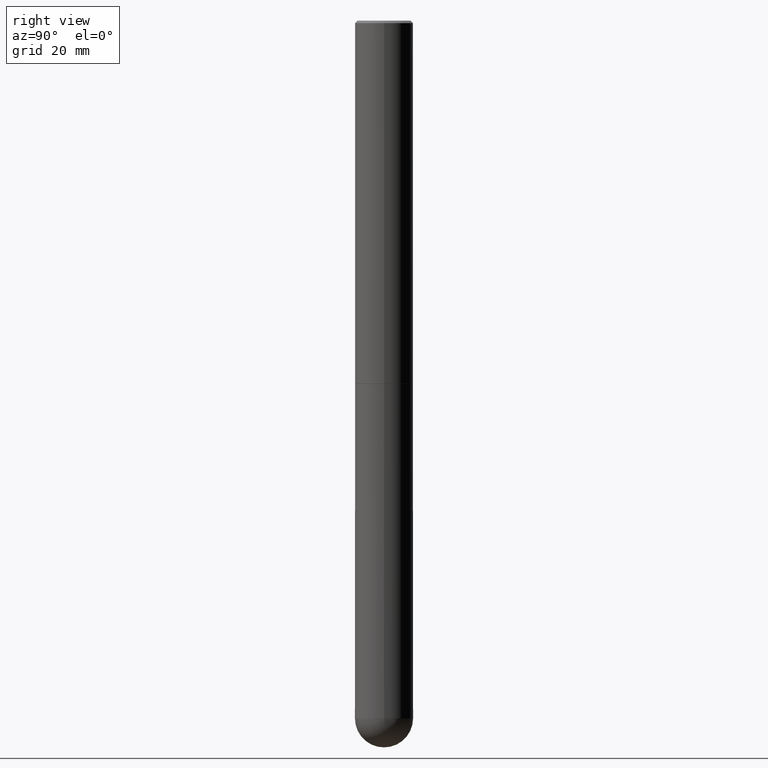
[diagram: clean part render]
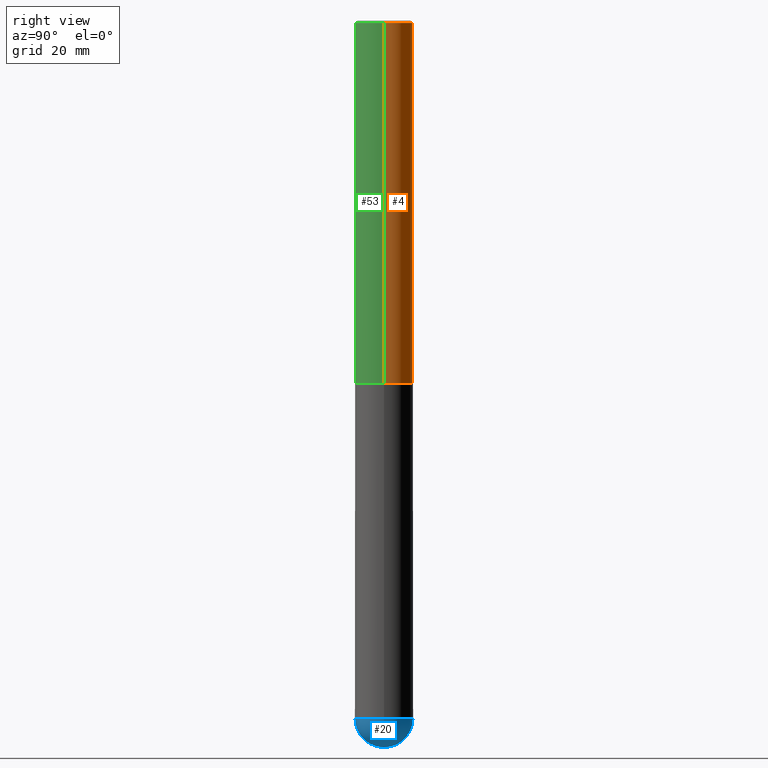
[diagram: same view with three faces highlighted in distinct colors, each labeled with its STEP entity id]
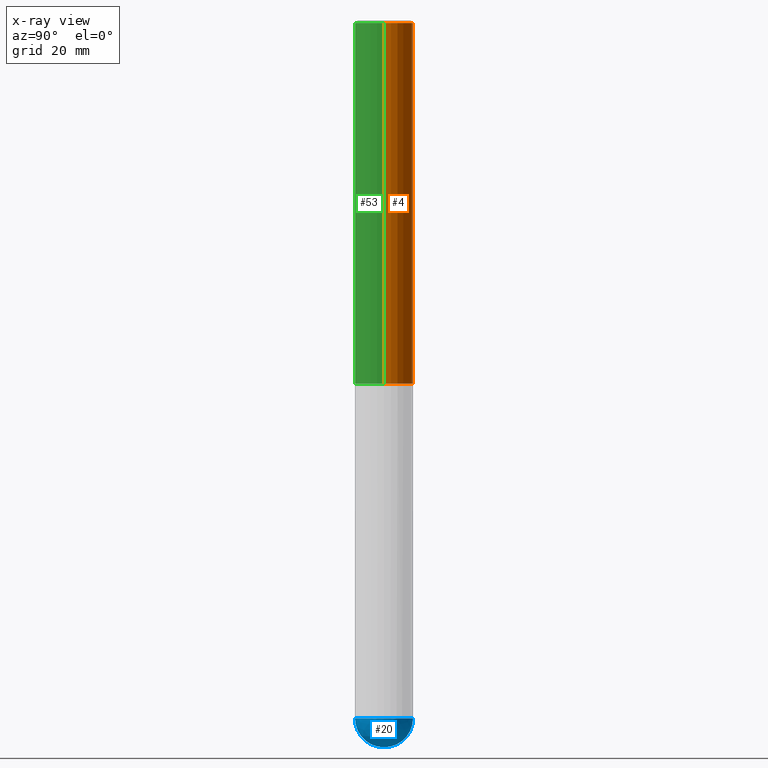
[diagram: x-ray of the same camera — body ghosted, the three highlighted faces saturated]
A machine part, right view with three faces highlighted in distinct colors.
The next image is the same camera in x-ray (body ghosted, the three faces saturated) — at least one of them is partly hidden behind the body in this view.
Their STEP definitions:

[orange] entity #4 — the highlighted cylindrical surface (edge-blend (fillet) strip) has radius 5.9995 mm, axis along (-0, 0, 1).
#4 = ADVANCED_FACE ( 'NONE', ( #305 ), #247, .T. ) ;
#8 = CARTESIAN_POINT ( 'NONE',  ( 4.890937612370285420E-31, -6.982962677686308865E-17, -0.02000000000000005246 ) ) ;
#22 = AXIS2_PLACEMENT_3D ( 'NONE', #8, #231, #325 ) ;
#35 = AXIS2_PLACEMENT_3D ( 'NONE', #245, #341, #395 ) ;
#49 = ORIENTED_EDGE ( 'NONE', *, *, #330, .F. ) ;
#64 = VERTEX_POINT ( 'NONE', #373 ) ;
#69 = LINE ( 'NONE', #194, #408 ) ;
#70 = CARTESIAN_POINT ( 'NONE',  ( 7.218290275216666916E-29, -1.030580546786331359E-14, -2.951700000000000212 ) ) ;
#81 = VECTOR ( 'NONE', #347, 39.37007874015748143 ) ;
#94 = LINE ( 'NONE', #104, #81 ) ;
#104 = CARTESIAN_POINT ( 'NONE',  ( 0.2362000000000001598, -1.649375784469497314E-15, 1.151752954443000929E-29 ) ) ;
#133 = EDGE_LOOP ( 'NONE', ( #277, #405, #49, #185 ) ) ;
#181 = EDGE_CURVE ( 'NONE', #64, #261, #94, .T. ) ;
#185 = ORIENTED_EDGE ( 'NONE', *, *, #181, .F. ) ;
#194 = CARTESIAN_POINT ( 'NONE',  ( -0.2362000000000001598, 1.678301941865357775E-15, -1.161852468318209598E-29 ) ) ;
#202 = EDGE_CURVE ( 'NONE', #367, #208, #69, .T. ) ;
#208 = VERTEX_POINT ( 'NONE', #287 ) ;
#231 = DIRECTION ( 'NONE',  ( -2.445468806185136597E-29, 3.491481338843145583E-15, 1.000000000000000000 ) ) ;
#241 = CIRCLE ( 'NONE', #22, 0.2361999999999999933 ) ;
#245 = CARTESIAN_POINT ( 'NONE',  ( 0.000000000000000000, 0.000000000000000000, 0.000000000000000000 ) ) ;
#247 = CYLINDRICAL_SURFACE ( 'NONE', #35, 0.2362000000000001598 ) ;
#250 = EDGE_CURVE ( 'NONE', #64, #367, #292, .T. ) ;
#261 = VERTEX_POINT ( 'NONE', #312 ) ;
#277 = ORIENTED_EDGE ( 'NONE', *, *, #250, .T. ) ;
#279 = DIRECTION ( 'NONE',  ( 1.000000000000000000, -6.982962677686263555E-15, 0.000000000000000000 ) ) ;
#287 = CARTESIAN_POINT ( 'NONE',  ( -0.2361999999999999933, 1.579546157692633030E-15, -0.02000000000000005246 ) ) ;
#292 = CIRCLE ( 'NONE', #375, 0.2362000000000003264 ) ;
#305 = FACE_OUTER_BOUND ( 'NONE', #133, .T. ) ;
#312 = CARTESIAN_POINT ( 'NONE',  ( 0.2361999999999999933, -1.690279253850498771E-15, -0.02000000000000005246 ) ) ;
#318 = DIRECTION ( 'NONE',  ( -2.445468806185136597E-29, 3.491481338843145583E-15, 1.000000000000000000 ) ) ;
#325 = DIRECTION ( 'NONE',  ( 1.000000000000000000, -6.982962677686266711E-15, 0.000000000000000000 ) ) ;
#330 = EDGE_CURVE ( 'NONE', #261, #208, #241, .T. ) ;
#341 = DIRECTION ( 'NONE',  ( -2.445468806185136597E-29, 3.491481338843145583E-15, 1.000000000000000000 ) ) ;
#347 = DIRECTION ( 'NONE',  ( -2.445468806185136877E-29, 3.491481338843145188E-15, 1.000000000000000000 ) ) ;
#356 = CARTESIAN_POINT ( 'NONE',  ( -0.2362000000000003264, -3.509515605454725737E-15, -2.951700000000000212 ) ) ;
#367 = VERTEX_POINT ( 'NONE', #356 ) ;
#373 = CARTESIAN_POINT ( 'NONE',  ( 0.2362000000000003264, -1.195518125233281169E-14, -2.951700000000000212 ) ) ;
#375 = AXIS2_PLACEMENT_3D ( 'NONE', #70, #318, #279 ) ;
#395 = DIRECTION ( 'NONE',  ( 1.000000000000000000, -6.982962677686266711E-15, 4.876176775795936353E-29 ) ) ;
#405 = ORIENTED_EDGE ( 'NONE', *, *, #202, .T. ) ;
#408 = VECTOR ( 'NONE', #412, 39.37007874015748143 ) ;
#412 = DIRECTION ( 'NONE',  ( -2.445468806185136877E-29, 3.491481338843145188E-15, 1.000000000000000000 ) ) ;

[blue] entity #20 — the highlighted spherical surface has radius 5.9995 mm.
#10 = AXIS2_PLACEMENT_3D ( 'NONE', #240, #365, #272 ) ;
#20 = ADVANCED_FACE ( 'NONE', ( #182 ), #150, .T. ) ;
#23 = CARTESIAN_POINT ( 'NONE',  ( 1.353297652499150981E-28, -2.026843752244349558E-14, -5.669299999999999784 ) ) ;
#28 = CARTESIAN_POINT ( 'NONE',  ( 1.386409630290539494E-28, -1.979425515430344370E-14, -5.669299999999999784 ) ) ;
#36 = CIRCLE ( 'NONE', #278, 0.2361999999999999933 ) ;
#41 = CIRCLE ( 'NONE', #66, 0.2362000000000002709 ) ;
#55 = EDGE_LOOP ( 'NONE', ( #289, #409, #117, #339 ) ) ;
#59 = DIRECTION ( 'NONE',  ( -1.000000000000000000, 6.982962677686265922E-15, -4.883557194083112901E-29 ) ) ;
#66 = AXIS2_PLACEMENT_3D ( 'NONE', #132, #377, #257 ) ;
#71 = CARTESIAN_POINT ( 'NONE',  ( 1.412069577088764835E-28, -2.107866233598031943E-14, -5.905499999999999972 ) ) ;
#80 = EDGE_CURVE ( 'NONE', #286, #111, #374, .T. ) ;
#87 = VERTEX_POINT ( 'NONE', #215 ) ;
#98 = DIRECTION ( 'NONE',  ( 1.000000000000000000, -6.982962677686273021E-15, 0.000000000000000000 ) ) ;
#107 = EDGE_CURVE ( 'NONE', #286, #303, #41, .T. ) ;
#111 = VERTEX_POINT ( 'NONE', #378 ) ;
#117 = ORIENTED_EDGE ( 'NONE', *, *, #288, .F. ) ;
#125 = AXIS2_PLACEMENT_3D ( 'NONE', #23, #59, #180 ) ;
#129 = DIRECTION ( 'NONE',  ( 1.000000000000000000, -6.982962677686273021E-15, 0.000000000000000000 ) ) ;
#132 = CARTESIAN_POINT ( 'NONE',  ( 1.353297652499150981E-28, -2.026843752244349558E-14, -5.669299999999999784 ) ) ;
#135 = EDGE_CURVE ( 'NONE', #303, #87, #402, .T. ) ;
#150 = SPHERICAL_SURFACE ( 'NONE', #125, 0.2362000000000002709 ) ;
#180 = DIRECTION ( 'NONE',  ( 6.982962677686265922E-15, 1.000000000000000000, -4.626330217890364603E-15 ) ) ;
#182 = FACE_OUTER_BOUND ( 'NONE', #55, .T. ) ;
#215 = CARTESIAN_POINT ( 'NONE',  ( 0.2361999999999999933, -1.670115183622230141E-14, -5.669299999999999784 ) ) ;
#224 = CARTESIAN_POINT ( 'NONE',  ( 1.386409630290539494E-28, -1.979425515430344370E-14, -5.669299999999999784 ) ) ;
#240 = CARTESIAN_POINT ( 'NONE',  ( 1.353297652499150981E-28, -2.026843752244349558E-14, -5.669299999999999784 ) ) ;
#253 = CARTESIAN_POINT ( 'NONE',  ( -1.678301941865220316E-15, -0.2362000000000201716, -5.669299999999998896 ) ) ;
#257 = DIRECTION ( 'NONE',  ( -7.105427357601001070E-15, -1.000000000000000000, 0.000000000000000000 ) ) ;
#272 = DIRECTION ( 'NONE',  ( 6.982962677686265922E-15, 1.000000000000000000, 0.000000000000000000 ) ) ;
#278 = AXIS2_PLACEMENT_3D ( 'NONE', #28, #404, #129 ) ;
#286 = VERTEX_POINT ( 'NONE', #71 ) ;
#288 = EDGE_CURVE ( 'NONE', #87, #111, #36, .T. ) ;
#289 = ORIENTED_EDGE ( 'NONE', *, *, #107, .F. ) ;
#298 = AXIS2_PLACEMENT_3D ( 'NONE', #224, #406, #98 ) ;
#303 = VERTEX_POINT ( 'NONE', #253 ) ;
#339 = ORIENTED_EDGE ( 'NONE', *, *, #135, .F. ) ;
#365 = DIRECTION ( 'NONE',  ( 1.000000000000000000, -6.982962677686265922E-15, 4.883557194083112340E-29 ) ) ;
#374 = CIRCLE ( 'NONE', #10, 0.2362000000000002709 ) ;
#377 = DIRECTION ( 'NONE',  ( -1.000000000000000000, 7.105427357601001070E-15, -4.926315508542082329E-29 ) ) ;
#378 = CARTESIAN_POINT ( 'NONE',  ( 1.649375784469633984E-15, 0.2361999999999800925, -5.669300000000000672 ) ) ;
#402 = CIRCLE ( 'NONE', #298, 0.2361999999999999933 ) ;
#404 = DIRECTION ( 'NONE',  ( -2.445468806185136597E-29, 3.491481338843145583E-15, 1.000000000000000000 ) ) ;
#406 = DIRECTION ( 'NONE',  ( -2.445468806185136597E-29, 3.491481338843145583E-15, 1.000000000000000000 ) ) ;
#409 = ORIENTED_EDGE ( 'NONE', *, *, #80, .T. ) ;

[green] entity #53 — the highlighted cylindrical surface (edge-blend (fillet) strip) has radius 5.9995 mm, axis along (-0, 0, 1).
#6 = DIRECTION ( 'NONE',  ( -2.445468806185136597E-29, 3.491481338843145583E-15, 1.000000000000000000 ) ) ;
#24 = DIRECTION ( 'NONE',  ( -2.445468806185136597E-29, 3.491481338843145583E-15, 1.000000000000000000 ) ) ;
#26 = FACE_OUTER_BOUND ( 'NONE', #115, .T. ) ;
#53 = ADVANCED_FACE ( 'NONE', ( #26 ), #206, .T. ) ;
#64 = VERTEX_POINT ( 'NONE', #373 ) ;
#69 = LINE ( 'NONE', #194, #408 ) ;
#72 = AXIS2_PLACEMENT_3D ( 'NONE', #371, #24, #124 ) ;
#81 = VECTOR ( 'NONE', #347, 39.37007874015748143 ) ;
#94 = LINE ( 'NONE', #104, #81 ) ;
#104 = CARTESIAN_POINT ( 'NONE',  ( 0.2362000000000001598, -1.649375784469497314E-15, 1.151752954443000929E-29 ) ) ;
#115 = EDGE_LOOP ( 'NONE', ( #334, #116, #306, #354 ) ) ;
#116 = ORIENTED_EDGE ( 'NONE', *, *, #327, .T. ) ;
#124 = DIRECTION ( 'NONE',  ( 1.000000000000000000, -6.982962677686266711E-15, 4.876176775795936353E-29 ) ) ;
#126 = AXIS2_PLACEMENT_3D ( 'NONE', #283, #158, #342 ) ;
#158 = DIRECTION ( 'NONE',  ( -2.445468806185136597E-29, 3.491481338843145583E-15, 1.000000000000000000 ) ) ;
#181 = EDGE_CURVE ( 'NONE', #64, #261, #94, .T. ) ;
#194 = CARTESIAN_POINT ( 'NONE',  ( -0.2362000000000001598, 1.678301941865357775E-15, -1.161852468318209598E-29 ) ) ;
#202 = EDGE_CURVE ( 'NONE', #367, #208, #69, .T. ) ;
#206 = CYLINDRICAL_SURFACE ( 'NONE', #72, 0.2362000000000001598 ) ;
#208 = VERTEX_POINT ( 'NONE', #287 ) ;
#221 = AXIS2_PLACEMENT_3D ( 'NONE', #389, #6, #264 ) ;
#242 = EDGE_CURVE ( 'NONE', #208, #261, #390, .T. ) ;
#261 = VERTEX_POINT ( 'NONE', #312 ) ;
#264 = DIRECTION ( 'NONE',  ( 1.000000000000000000, -6.982962677686263555E-15, 0.000000000000000000 ) ) ;
#283 = CARTESIAN_POINT ( 'NONE',  ( 4.890937612370285420E-31, -6.982962677686308865E-17, -0.02000000000000005246 ) ) ;
#284 = CIRCLE ( 'NONE', #221, 0.2362000000000003264 ) ;
#287 = CARTESIAN_POINT ( 'NONE',  ( -0.2361999999999999933, 1.579546157692633030E-15, -0.02000000000000005246 ) ) ;
#306 = ORIENTED_EDGE ( 'NONE', *, *, #181, .T. ) ;
#312 = CARTESIAN_POINT ( 'NONE',  ( 0.2361999999999999933, -1.690279253850498771E-15, -0.02000000000000005246 ) ) ;
#327 = EDGE_CURVE ( 'NONE', #367, #64, #284, .T. ) ;
#334 = ORIENTED_EDGE ( 'NONE', *, *, #202, .F. ) ;
#342 = DIRECTION ( 'NONE',  ( 1.000000000000000000, -6.982962677686266711E-15, 0.000000000000000000 ) ) ;
#347 = DIRECTION ( 'NONE',  ( -2.445468806185136877E-29, 3.491481338843145188E-15, 1.000000000000000000 ) ) ;
#354 = ORIENTED_EDGE ( 'NONE', *, *, #242, .F. ) ;
#356 = CARTESIAN_POINT ( 'NONE',  ( -0.2362000000000003264, -3.509515605454725737E-15, -2.951700000000000212 ) ) ;
#367 = VERTEX_POINT ( 'NONE', #356 ) ;
#371 = CARTESIAN_POINT ( 'NONE',  ( 0.000000000000000000, 0.000000000000000000, 0.000000000000000000 ) ) ;
#373 = CARTESIAN_POINT ( 'NONE',  ( 0.2362000000000003264, -1.195518125233281169E-14, -2.951700000000000212 ) ) ;
#389 = CARTESIAN_POINT ( 'NONE',  ( 7.218290275216666916E-29, -1.030580546786331359E-14, -2.951700000000000212 ) ) ;
#390 = CIRCLE ( 'NONE', #126, 0.2361999999999999933 ) ;
#408 = VECTOR ( 'NONE', #412, 39.37007874015748143 ) ;
#412 = DIRECTION ( 'NONE',  ( -2.445468806185136877E-29, 3.491481338843145188E-15, 1.000000000000000000 ) ) ;